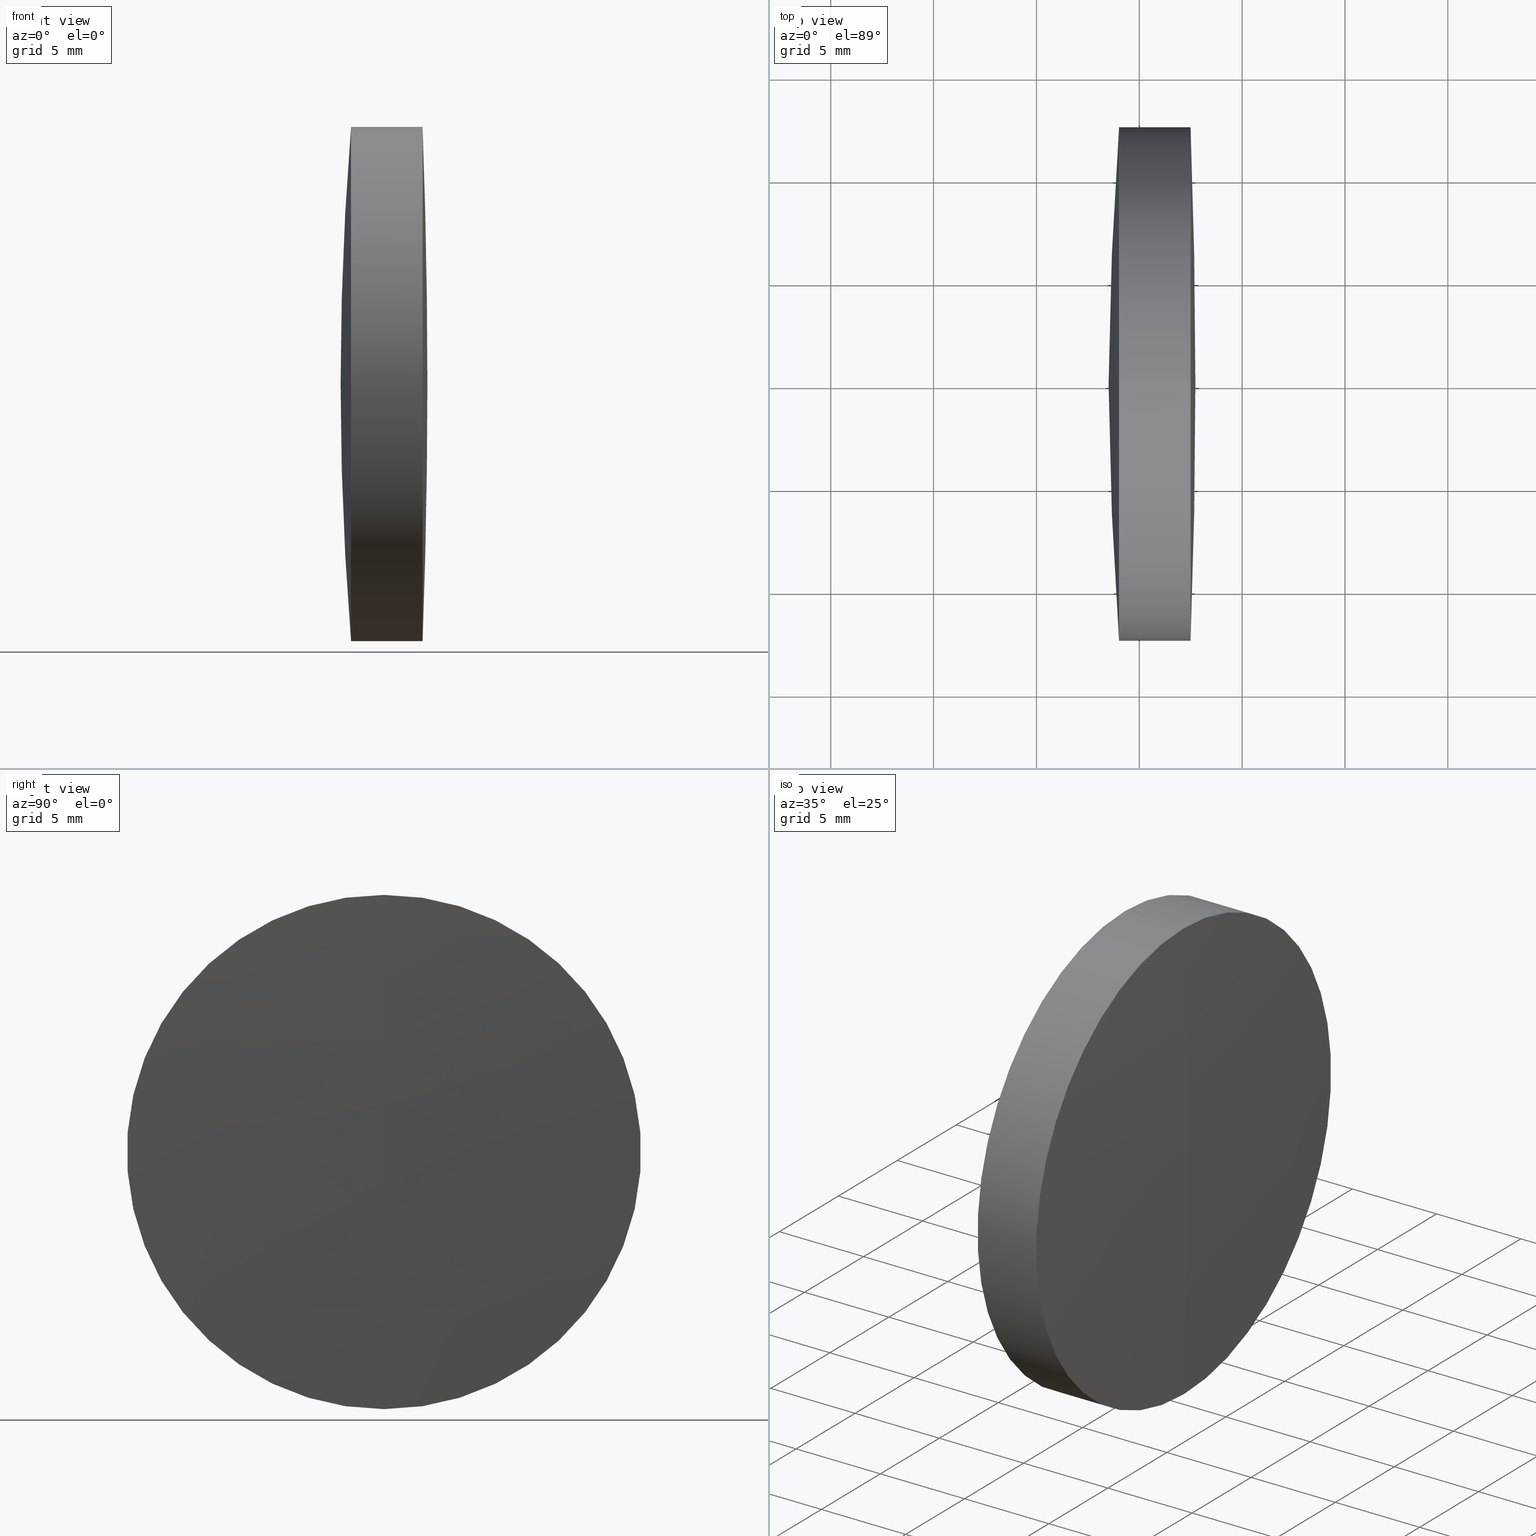
[diagram: canonical four-view strip — front | top / right | iso, engineering-drawing reading convention]
A machine part, canonical four-view strip (front | top / right | iso — engineering-drawing reading convention). The complete STEP part file that produces these views, byte-faithful:
ISO-10303-21;
HEADER;
FILE_DESCRIPTION (( 'STEP AP214' ),
    '1' );
FILE_NAME ('145046.STEP',
    '2019-05-12T07:00:24',
    ( 'user' ),
    ( '΢���й�' ),
    'SwSTEP 2.0',
    'SolidWorks 2016',
    '' );
FILE_SCHEMA (( 'AUTOMOTIVE_DESIGN' ));
ENDSEC;

DATA;
#1 = PRESENTATION_LAYER_ASSIGNMENT (  '', '', ( #36 ) ) ;
#2 = CARTESIAN_POINT ( 'NONE',  ( 115.4447867878546700, 1.530808498934191500E-015, -12.50000000000000000 ) ) ;
#3 = ORIENTED_EDGE ( 'NONE', *, *, #121, .F. ) ;
#4 = ORIENTED_EDGE ( 'NONE', *, *, #208, .F. ) ;
#5 = ADVANCED_FACE ( 'NONE', ( #166 ), #158, .T. ) ;
#6 = DIRECTION ( 'NONE',  ( -0.0000000000000000000, 1.000000000000000000, 1.224646799147353200E-016 ) ) ;
#7 = CARTESIAN_POINT ( 'NONE',  ( -9.702612178336682500, 1.530808498934191500E-015, -12.50000000000000000 ) ) ;
#8 = EDGE_CURVE ( 'NONE', #28, #264, #342, .T. ) ;
#9 = DIRECTION ( 'NONE',  ( 0.0000000000000000000, 0.0000000000000000000, -1.000000000000000000 ) ) ;
#10 = CIRCLE ( 'NONE', #305, 101.3390000000000000 ) ;
#11 = DIRECTION ( 'NONE',  ( 0.0000000000000000000, 0.0000000000000000000, 1.000000000000000000 ) ) ;
#12 = DIRECTION ( 'NONE',  ( 0.0000000000000000000, 1.000000000000000000, 0.0000000000000000000 ) ) ;
#13 = DIRECTION ( 'NONE',  ( 0.0000000000000000000, -1.224646799147353200E-016, 1.000000000000000000 ) ) ;
#14 = VECTOR ( 'NONE', #54, 1000.000000000000000 ) ;
#15 = DIRECTION ( 'NONE',  ( 0.0000000000000000000, -1.224646799147353000E-016, 1.000000000000000000 ) ) ;
#16 = ORIENTED_EDGE ( 'NONE', *, *, #160, .T. ) ;
#17 = CARTESIAN_POINT ( 'NONE',  ( 115.4447867878546700, 0.0000000000000000000, 0.0000000000000000000 ) ) ;
#18 = DIRECTION ( 'NONE',  ( 0.0000000000000000000, 0.0000000000000000000, -1.000000000000000000 ) ) ;
#19 = DIRECTION ( 'NONE',  ( -0.0000000000000000000, 1.000000000000000000, 1.224646799147353200E-016 ) ) ;
#20 = CARTESIAN_POINT ( 'NONE',  ( 117.4941239712516400, 0.0000000000000000000, 0.0000000000000000000 ) ) ;
#21 = CARTESIAN_POINT ( 'NONE',  ( 115.4447867878546400, 0.0000000000000000000, 12.49999999999999300 ) ) ;
#22 = VERTEX_POINT ( 'NONE', #225 ) ;
#23 = AXIS2_PLACEMENT_3D ( 'NONE', #20, #296, #322 ) ;
#24 = VERTEX_POINT ( 'NONE', #256 ) ;
#25 = AXIS2_PLACEMENT_3D ( 'NONE', #17, #265, #274 ) ;
#26 = CARTESIAN_POINT ( 'NONE',  ( 115.4447867878546400, 0.0000000000000000000, 0.0000000000000000000 ) ) ;
#27 = DIRECTION ( 'NONE',  ( 0.0000000000000000000, 1.000000000000000000, 0.0000000000000000000 ) ) ;
#28 = VERTEX_POINT ( 'NONE', #172 ) ;
#29 = CIRCLE ( 'NONE', #25, 12.50000000000000000 ) ;
#30 = SPHERICAL_SURFACE ( 'NONE', #93, 101.3390000000000000 ) ;
#31 = DIRECTION ( 'NONE',  ( 0.0000000000000000000, 1.000000000000000000, 0.0000000000000000000 ) ) ;
#32 = AXIS2_PLACEMENT_3D ( 'NONE', #61, #164, #9 ) ;
#33 = APPLICATION_CONTEXT ( 'automotive_design' ) ;
#34 = ORIENTED_EDGE ( 'NONE', *, *, #85, .T. ) ;
#35 = CYLINDRICAL_SURFACE ( 'NONE', #56, 12.49999999999996600 ) ;
#36 = STYLED_ITEM ( 'NONE', ( #284 ), #77 ) ;
#37 = ORIENTED_EDGE ( 'NONE', *, *, #251, .T. ) ;
#38 = VERTEX_POINT ( 'NONE', #155 ) ;
#39 = DIRECTION ( 'NONE',  ( -0.0000000000000000000, 1.000000000000000000, 1.224646799147353200E-016 ) ) ;
#40 = CARTESIAN_POINT ( 'NONE',  ( -9.702612178336682500, 0.0000000000000000000, 0.0000000000000000000 ) ) ;
#41 = PRODUCT_CONTEXT ( 'NONE', #214, 'mechanical' ) ;
#42 =( NAMED_UNIT ( * ) PLANE_ANGLE_UNIT ( ) SI_UNIT ( $, .RADIAN. ) );
#43 = ORIENTED_EDGE ( 'NONE', *, *, #70, .T. ) ;
#44 =( NAMED_UNIT ( * ) SI_UNIT ( $, .STERADIAN. ) SOLID_ANGLE_UNIT ( ) );
#45 = AXIS2_PLACEMENT_3D ( 'NONE', #334, #31, #277 ) ;
#46 = PRODUCT_DEFINITION ( 'δ֪', '', #150, #244 ) ;
#47 = CARTESIAN_POINT ( 'NONE',  ( 14.87966897357473400, 0.0000000000000000000, 1.355252715606880500E-017 ) ) ;
#48 = DIRECTION ( 'NONE',  ( -1.000000000000000000, -0.0000000000000000000, -0.0000000000000000000 ) ) ;
#49 = ORIENTED_EDGE ( 'NONE', *, *, #206, .F. ) ;
#50 = DIRECTION ( 'NONE',  ( -1.000000000000000000, -0.0000000000000000000, -0.0000000000000000000 ) ) ;
#51 = ADVANCED_FACE ( 'NONE', ( #119 ), #302, .T. ) ;
#52 = EDGE_CURVE ( 'NONE', #38, #264, #102, .T. ) ;
#53 = SURFACE_SIDE_STYLE ('',( #245 ) ) ;
#54 = DIRECTION ( 'NONE',  ( -1.000000000000000000, -0.0000000000000000000, -0.0000000000000000000 ) ) ;
#55 = ORIENTED_EDGE ( 'NONE', *, *, #131, .F. ) ;
#56 = AXIS2_PLACEMENT_3D ( 'NONE', #71, #64, #99 ) ;
#57 = FACE_OUTER_BOUND ( 'NONE', #170, .T. ) ;
#58 = EDGE_LOOP ( 'NONE', ( #281, #34, #83 ) ) ;
#59 = DIRECTION ( 'NONE',  ( 1.000000000000000000, 0.0000000000000000000, 0.0000000000000000000 ) ) ;
#60 = AXIS2_PLACEMENT_3D ( 'NONE', #95, #221, #59 ) ;
#61 = CARTESIAN_POINT ( 'NONE',  ( 267.3406689735747400, 0.0000000000000000000, -9.034551352721274800E-017 ) ) ;
#62 = ORIENTED_EDGE ( 'NONE', *, *, #224, .T. ) ;
#63 = STYLED_ITEM ( 'NONE', ( #280 ), #333 ) ;
#64 = DIRECTION ( 'NONE',  ( -1.000000000000000000, -0.0000000000000000000, -0.0000000000000000000 ) ) ;
#65 = DIRECTION ( 'NONE',  ( 0.0000000000000000000, 0.0000000000000000000, 1.000000000000000000 ) ) ;
#66 = CARTESIAN_POINT ( 'NONE',  ( 267.3406689735747400, 0.0000000000000000000, -9.034551352721274800E-017 ) ) ;
#67 = CYLINDRICAL_SURFACE ( 'NONE', #84, 12.50000000000000000 ) ;
#68 = VERTEX_POINT ( 'NONE', #2 ) ;
#69 = DIRECTION ( 'NONE',  ( 0.0000000000000000000, 0.0000000000000000000, 1.000000000000000000 ) ) ;
#70 = EDGE_CURVE ( 'NONE', #264, #24, #103, .T. ) ;
#71 = CARTESIAN_POINT ( 'NONE',  ( -0.5519199926577972300, 0.0000000000000000000, 0.0000000000000000000 ) ) ;
#72 = DIRECTION ( 'NONE',  ( 0.0000000000000000000, 0.0000000000000000000, 1.000000000000000000 ) ) ;
#73 =( LENGTH_UNIT ( ) NAMED_UNIT ( * ) SI_UNIT ( .MILLI., .METRE. ) );
#74 =( NAMED_UNIT ( * ) SI_UNIT ( $, .STERADIAN. ) SOLID_ANGLE_UNIT ( ) );
#75 = COLOUR_RGB ( '',1.000000000000000000, 1.000000000000000000, 1.000000000000000000 ) ;
#76 = FACE_OUTER_BOUND ( 'NONE', #346, .T. ) ;
#77 = MANIFOLD_SOLID_BREP ( '��ת3', #159 ) ;
#78 = DIRECTION ( 'NONE',  ( -1.000000000000000000, -0.0000000000000000000, -0.0000000000000000000 ) ) ;
#79 = AXIS2_PLACEMENT_3D ( 'NONE', #312, #27, #212 ) ;
#80 = MECHANICAL_DESIGN_GEOMETRIC_PRESENTATION_REPRESENTATION (  '', ( #36 ), #268 ) ;
#81 = CARTESIAN_POINT ( 'NONE',  ( 115.4447867878546400, 0.0000000000000000000, 0.0000000000000000000 ) ) ;
#82 = APPLICATION_PROTOCOL_DEFINITION ( 'draft international standard', 'automotive_design', 1998, #214 ) ;
#83 = ORIENTED_EDGE ( 'NONE', *, *, #184, .F. ) ;
#84 = AXIS2_PLACEMENT_3D ( 'NONE', #219, #331, #100 ) ;
#85 = EDGE_CURVE ( 'NONE', #28, #38, #325, .T. ) ;
#86 =( NAMED_UNIT ( * ) SI_UNIT ( $, .STERADIAN. ) SOLID_ANGLE_UNIT ( ) );
#87 = EDGE_LOOP ( 'NONE', ( #327, #146, #290 ) ) ;
#88 = DIRECTION ( 'NONE',  ( 0.0000000000000000000, 1.000000000000000000, 0.0000000000000000000 ) ) ;
#89 = FILL_AREA_STYLE ('',( #332 ) ) ;
#90 = CIRCLE ( 'NONE', #344, 101.3389999999999800 ) ;
#91 = CARTESIAN_POINT ( 'NONE',  ( 14.87966897357473400, 0.0000000000000000000, 1.355252715606880500E-017 ) ) ;
#92 = EDGE_CURVE ( 'NONE', #101, #216, #340, .T. ) ;
#93 = AXIS2_PLACEMENT_3D ( 'NONE', #47, #12, #108 ) ;
#94 = DIRECTION ( 'NONE',  ( 0.0000000000000000000, 1.000000000000000000, 0.0000000000000000000 ) ) ;
#95 = CARTESIAN_POINT ( 'NONE',  ( 0.0000000000000000000, 0.0000000000000000000, 0.0000000000000000000 ) ) ;
#96 = CARTESIAN_POINT ( 'NONE',  ( 14.87966897357473400, 0.0000000000000000000, 1.355252715606880500E-017 ) ) ;
#97 = CARTESIAN_POINT ( 'NONE',  ( 267.3406689735747400, 0.0000000000000000000, -9.034551352721274800E-017 ) ) ;
#98 = DIRECTION ( 'NONE',  ( -1.000000000000000000, -0.0000000000000000000, -0.0000000000000000000 ) ) ;
#99 = DIRECTION ( 'NONE',  ( 0.0000000000000000000, 0.0000000000000000000, 1.000000000000000000 ) ) ;
#100 = DIRECTION ( 'NONE',  ( 0.0000000000000000000, 0.0000000000000000000, 1.000000000000000000 ) ) ;
#101 = VERTEX_POINT ( 'NONE', #113 ) ;
#102 = CIRCLE ( 'NONE', #23, 12.49999999999995000 ) ;
#103 = LINE ( 'NONE', #291, #14 ) ;
#104 = UNCERTAINTY_MEASURE_WITH_UNIT (LENGTH_MEASURE( 1.000000000000000100E-005 ), #124, 'distance_accuracy_value', 'NONE');
#105 = EDGE_CURVE ( 'NONE', #24, #216, #308, .T. ) ;
#106 = ORIENTED_EDGE ( 'NONE', *, *, #149, .F. ) ;
#107 = DIRECTION ( 'NONE',  ( 0.0000000000000000000, 1.000000000000000000, 0.0000000000000000000 ) ) ;
#108 = DIRECTION ( 'NONE',  ( 0.0000000000000000000, 0.0000000000000000000, 1.000000000000000000 ) ) ;
#109 = AXIS2_PLACEMENT_3D ( 'NONE', #111, #107, #278 ) ;
#110 = DIRECTION ( 'NONE',  ( 0.0000000000000000000, 0.0000000000000000000, 1.000000000000000000 ) ) ;
#111 = CARTESIAN_POINT ( 'NONE',  ( 14.87966897357473400, 0.0000000000000000000, 1.355252715606880500E-017 ) ) ;
#112 = FACE_OUTER_BOUND ( 'NONE', #126, .T. ) ;
#113 = CARTESIAN_POINT ( 'NONE',  ( 116.2186689735747200, 0.0000000000000000000, 6.218776626095749400E-015 ) ) ;
#114 = DIRECTION ( 'NONE',  ( 0.0000000000000000000, -1.224646799147353500E-016, 1.000000000000000000 ) ) ;
#115 = ORIENTED_EDGE ( 'NONE', *, *, #8, .T. ) ;
#116 = DIRECTION ( 'NONE',  ( 0.0000000000000000000, 0.0000000000000000000, 1.000000000000000000 ) ) ;
#117 = SURFACE_STYLE_FILL_AREA ( #313 ) ;
#118 = DIRECTION ( 'NONE',  ( 0.0000000000000000000, 0.0000000000000000000, 1.000000000000000000 ) ) ;
#119 = FACE_OUTER_BOUND ( 'NONE', #58, .T. ) ;
#120 = DIRECTION ( 'NONE',  ( -1.000000000000000000, -0.0000000000000000000, -0.0000000000000000000 ) ) ;
#121 = EDGE_CURVE ( 'NONE', #228, #343, #133, .T. ) ;
#122 = FACE_OUTER_BOUND ( 'NONE', #182, .T. ) ;
#123 = AXIS2_PLACEMENT_3D ( 'NONE', #40, #50, #118 ) ;
#124 =( LENGTH_UNIT ( ) NAMED_UNIT ( * ) SI_UNIT ( .MILLI., .METRE. ) );
#125 = ORIENTED_EDGE ( 'NONE', *, *, #137, .F. ) ;
#126 = EDGE_LOOP ( 'NONE', ( #259, #43, #125, #261 ) ) ;
#127 = COLOUR_RGB ( '',1.000000000000000000, 1.000000000000000000, 1.000000000000000000 ) ;
#128 = CIRCLE ( 'NONE', #161, 153.8320000000000200 ) ;
#129 = ADVANCED_FACE ( 'NONE', ( #122 ), #187, .T. ) ;
#130 = CLOSED_SHELL ( 'NONE', ( #341, #257, #5, #248, #294, #315 ) ) ;
#131 = EDGE_CURVE ( 'NONE', #343, #228, #207, .T. ) ;
#132 = PRESENTATION_LAYER_ASSIGNMENT (  '', '', ( #63 ) ) ;
#133 = CIRCLE ( 'NONE', #317, 12.50000000000000000 ) ;
#134 = ORIENTED_EDGE ( 'NONE', *, *, #177, .F. ) ;
#135 = MECHANICAL_DESIGN_GEOMETRIC_PRESENTATION_REPRESENTATION (  '', ( #180 ), #243 ) ;
#136 = CARTESIAN_POINT ( 'NONE',  ( 14.87966897357473400, 0.0000000000000000000, 1.355252715606880500E-017 ) ) ;
#137 = EDGE_CURVE ( 'NONE', #216, #24, #213, .T. ) ;
#138 = ORIENTED_EDGE ( 'NONE', *, *, #105, .T. ) ;
#139 = CARTESIAN_POINT ( 'NONE',  ( -215.4803310264252900, 0.0000000000000000000, 0.0000000000000000000 ) ) ;
#140 = SURFACE_STYLE_FILL_AREA ( #89 ) ;
#141 = SPHERICAL_SURFACE ( 'NONE', #204, 101.3390000000000000 ) ;
#142 = EDGE_CURVE ( 'NONE', #38, #216, #314, .T. ) ;
#143 = ORIENTED_EDGE ( 'NONE', *, *, #160, .F. ) ;
#144 = CARTESIAN_POINT ( 'NONE',  ( -215.4803310264252900, 0.0000000000000000000, 0.0000000000000000000 ) ) ;
#145 = CARTESIAN_POINT ( 'NONE',  ( -0.5519199926577972300, 0.0000000000000000000, 0.0000000000000000000 ) ) ;
#146 = ORIENTED_EDGE ( 'NONE', *, *, #131, .T. ) ;
#147 = VECTOR ( 'NONE', #120, 1000.000000000000000 ) ;
#148 = CARTESIAN_POINT ( 'NONE',  ( -215.4803310264252900, 0.0000000000000000000, 0.0000000000000000000 ) ) ;
#149 = EDGE_CURVE ( 'NONE', #231, #228, #162, .T. ) ;
#150 = PRODUCT_DEFINITION_FORMATION_WITH_SPECIFIED_SOURCE ( '�κ�', '', #267, .NOT_KNOWN. ) ;
#151 = DIRECTION ( 'NONE',  ( 0.0000000000000000000, -1.000000000000000000, 0.0000000000000000000 ) ) ;
#152 = ADVANCED_FACE ( 'NONE', ( #112 ), #35, .T. ) ;
#153 = EDGE_LOOP ( 'NONE', ( #318, #62, #138 ) ) ;
#154 =( GEOMETRIC_REPRESENTATION_CONTEXT ( 3 ) GLOBAL_UNCERTAINTY_ASSIGNED_CONTEXT ( ( #205 ) ) GLOBAL_UNIT_ASSIGNED_CONTEXT ( ( #241, #188, #74 ) ) REPRESENTATION_CONTEXT ( 'NONE', 'WORKASPACE' ) );
#155 = CARTESIAN_POINT ( 'NONE',  ( 117.4941239712516400, 0.0000000000000000000, 12.49999999999995000 ) ) ;
#156 = ADVANCED_FACE ( 'NONE', ( #174 ), #157, .F. ) ;
#157 = SPHERICAL_SURFACE ( 'NONE', #109, 101.3389999999999800 ) ;
#158 = SPHERICAL_SURFACE ( 'NONE', #45, 153.8320000000000200 ) ;
#159 = CLOSED_SHELL ( 'NONE', ( #129, #152, #347, #156, #298, #51 ) ) ;
#160 = EDGE_CURVE ( 'NONE', #22, #68, #234, .T. ) ;
#161 = AXIS2_PLACEMENT_3D ( 'NONE', #97, #168, #114 ) ;
#162 = LINE ( 'NONE', #304, #147 ) ;
#163 = SPHERICAL_SURFACE ( 'NONE', #238, 153.8320000000000200 ) ;
#164 = DIRECTION ( 'NONE',  ( 0.0000000000000000000, -1.000000000000000000, 0.0000000000000000000 ) ) ;
#165 = DIRECTION ( 'NONE',  ( 0.0000000000000000000, -1.000000000000000000, 0.0000000000000000000 ) ) ;
#166 = FACE_OUTER_BOUND ( 'NONE', #255, .T. ) ;
#167 = DIRECTION ( 'NONE',  ( -1.000000000000000000, -0.0000000000000000000, -0.0000000000000000000 ) ) ;
#168 = DIRECTION ( 'NONE',  ( -0.0000000000000000000, 1.000000000000000000, 1.224646799147353200E-016 ) ) ;
#169 =( NAMED_UNIT ( * ) PLANE_ANGLE_UNIT ( ) SI_UNIT ( $, .RADIAN. ) );
#170 = EDGE_LOOP ( 'NONE', ( #237, #16, #134 ) ) ;
#171 = DIRECTION ( 'NONE',  ( -1.000000000000000000, -0.0000000000000000000, -0.0000000000000000000 ) ) ;
#172 = CARTESIAN_POINT ( 'NONE',  ( 117.7286689735747000, 0.0000000000000000000, 2.040316676485451900E-014 ) ) ;
#173 = SURFACE_STYLE_USAGE ( .BOTH. , #215 ) ;
#174 = FACE_OUTER_BOUND ( 'NONE', #246, .T. ) ;
#175 = CARTESIAN_POINT ( 'NONE',  ( 117.4941239712516400, 0.0000000000000000000, 0.0000000000000000000 ) ) ;
#176 = DIRECTION ( 'NONE',  ( 0.0000000000000000000, 0.0000000000000000000, 1.000000000000000000 ) ) ;
#177 = EDGE_CURVE ( 'NONE', #231, #68, #29, .T. ) ;
#178 = AXIS2_PLACEMENT_3D ( 'NONE', #81, #295, #65 ) ;
#179 = ORIENTED_EDGE ( 'NONE', *, *, #149, .T. ) ;
#180 = STYLED_ITEM ( 'NONE', ( #287 ), #200 ) ;
#181 = FACE_OUTER_BOUND ( 'NONE', #217, .T. ) ;
#182 = EDGE_LOOP ( 'NONE', ( #254, #115, #271 ) ) ;
#183 = CIRCLE ( 'NONE', #262, 12.50000000000000000 ) ;
#184 = EDGE_CURVE ( 'NONE', #264, #38, #253, .T. ) ;
#185 = CARTESIAN_POINT ( 'NONE',  ( 117.4941239712516400, 1.530808498934186400E-015, -12.49999999999995000 ) ) ;
#186 = CARTESIAN_POINT ( 'NONE',  ( 114.0173692960632100, 1.530808498934200400E-015, -12.50000000000007300 ) ) ;
#187 = SPHERICAL_SURFACE ( 'NONE', #288, 333.2090000000000000 ) ;
#188 =( NAMED_UNIT ( * ) PLANE_ANGLE_UNIT ( ) SI_UNIT ( $, .RADIAN. ) );
#189 = EDGE_CURVE ( 'NONE', #22, #231, #10, .T. ) ;
#190 = PRESENTATION_LAYER_ASSIGNMENT (  '', '', ( #180 ) ) ;
#191 = DIRECTION ( 'NONE',  ( 0.0000000000000000000, -1.224646799147353200E-016, 1.000000000000000000 ) ) ;
#192 = ORIENTED_EDGE ( 'NONE', *, *, #70, .F. ) ;
#193 = DIRECTION ( 'NONE',  ( 0.0000000000000000000, -1.000000000000000000, 0.0000000000000000000 ) ) ;
#194 = UNCERTAINTY_MEASURE_WITH_UNIT (LENGTH_MEASURE( 1.000000000000000100E-005 ), #73, 'distance_accuracy_value', 'NONE');
#195 = LINE ( 'NONE', #7, #209 ) ;
#196 = DIRECTION ( 'NONE',  ( -1.000000000000000000, -0.0000000000000000000, -0.0000000000000000000 ) ) ;
#197 = ORIENTED_EDGE ( 'NONE', *, *, #251, .F. ) ;
#198 = AXIS2_PLACEMENT_3D ( 'NONE', #276, #88, #239 ) ;
#199 = CARTESIAN_POINT ( 'NONE',  ( 114.0173692960632100, 0.0000000000000000000, 0.0000000000000000000 ) ) ;
#200 = ADVANCED_BREP_SHAPE_REPRESENTATION ( '145046', ( #333, #77, #60 ), #154 ) ;
#201 = ORIENTED_EDGE ( 'NONE', *, *, #137, .T. ) ;
#202 = CYLINDRICAL_SURFACE ( 'NONE', #311, 12.49999999999996600 ) ;
#203 = ORIENTED_EDGE ( 'NONE', *, *, #208, .T. ) ;
#204 = AXIS2_PLACEMENT_3D ( 'NONE', #91, #320, #72 ) ;
#205 = UNCERTAINTY_MEASURE_WITH_UNIT (LENGTH_MEASURE( 1.000000000000000100E-005 ), #241, 'distance_accuracy_value', 'NONE');
#206 = EDGE_CURVE ( 'NONE', #228, #329, #242, .T. ) ;
#207 = CIRCLE ( 'NONE', #293, 12.50000000000000000 ) ;
#208 = EDGE_CURVE ( 'NONE', #68, #343, #195, .T. ) ;
#209 = VECTOR ( 'NONE', #167, 1000.000000000000000 ) ;
#210 = ORIENTED_EDGE ( 'NONE', *, *, #189, .T. ) ;
#211 = DIRECTION ( 'NONE',  ( 0.0000000000000000000, 0.0000000000000000000, -1.000000000000000000 ) ) ;
#212 = DIRECTION ( 'NONE',  ( 0.0000000000000000000, 0.0000000000000000000, 1.000000000000000000 ) ) ;
#213 = CIRCLE ( 'NONE', #233, 12.49999999999998400 ) ;
#214 = APPLICATION_CONTEXT ( 'automotive_design' ) ;
#215 = SURFACE_SIDE_STYLE ('',( #140 ) ) ;
#216 = VERTEX_POINT ( 'NONE', #21 ) ;
#217 = EDGE_LOOP ( 'NONE', ( #192, #273, #279, #229 ) ) ;
#218 = SURFACE_SIDE_STYLE ('',( #117 ) ) ;
#219 = CARTESIAN_POINT ( 'NONE',  ( -9.702612178336682500, 0.0000000000000000000, 0.0000000000000000000 ) ) ;
#220 = CARTESIAN_POINT ( 'NONE',  ( 114.0173692960632100, 0.0000000000000000000, 0.0000000000000000000 ) ) ;
#221 = DIRECTION ( 'NONE',  ( 0.0000000000000000000, 0.0000000000000000000, 1.000000000000000000 ) ) ;
#222 = AXIS2_PLACEMENT_3D ( 'NONE', #175, #196, #110 ) ;
#223 = DIRECTION ( 'NONE',  ( 0.0000000000000000000, 0.0000000000000000000, 1.000000000000000000 ) ) ;
#224 = EDGE_CURVE ( 'NONE', #101, #24, #90, .T. ) ;
#225 = CARTESIAN_POINT ( 'NONE',  ( 116.2186689735747400, 0.0000000000000000000, 6.218776626095750100E-015 ) ) ;
#226 = ORIENTED_EDGE ( 'NONE', *, *, #121, .T. ) ;
#227 = FILL_AREA_STYLE_COLOUR ( '', #260 ) ;
#228 = VERTEX_POINT ( 'NONE', #269 ) ;
#229 = ORIENTED_EDGE ( 'NONE', *, *, #105, .F. ) ;
#230 = SPHERICAL_SURFACE ( 'NONE', #198, 101.3389999999999800 ) ;
#231 = VERTEX_POINT ( 'NONE', #335 ) ;
#232 = EDGE_CURVE ( 'NONE', #343, #329, #128, .T. ) ;
#233 = AXIS2_PLACEMENT_3D ( 'NONE', #26, #98, #116 ) ;
#234 = CIRCLE ( 'NONE', #310, 101.3390000000000000 ) ;
#235 = SHAPE_DEFINITION_REPRESENTATION ( #345, #200 ) ;
#236 =( LENGTH_UNIT ( ) NAMED_UNIT ( * ) SI_UNIT ( .MILLI., .METRE. ) );
#237 = ORIENTED_EDGE ( 'NONE', *, *, #189, .F. ) ;
#238 = AXIS2_PLACEMENT_3D ( 'NONE', #66, #249, #11 ) ;
#239 = DIRECTION ( 'NONE',  ( 0.0000000000000000000, 0.0000000000000000000, 1.000000000000000000 ) ) ;
#240 = DIRECTION ( 'NONE',  ( 0.0000000000000000000, 0.0000000000000000000, 1.000000000000000000 ) ) ;
#241 =( LENGTH_UNIT ( ) NAMED_UNIT ( * ) SI_UNIT ( .MILLI., .METRE. ) );
#242 = CIRCLE ( 'NONE', #32, 153.8320000000000200 ) ;
#243 =( GEOMETRIC_REPRESENTATION_CONTEXT ( 3 ) GLOBAL_UNCERTAINTY_ASSIGNED_CONTEXT ( ( #299 ) ) GLOBAL_UNIT_ASSIGNED_CONTEXT ( ( #236, #42, #86 ) ) REPRESENTATION_CONTEXT ( 'NONE', 'WORKASPACE' ) );
#244 = PRODUCT_DEFINITION_CONTEXT ( 'detailed design', #33, 'design' ) ;
#245 = SURFACE_STYLE_FILL_AREA ( #306 ) ;
#246 = EDGE_LOOP ( 'NONE', ( #250, #303, #201 ) ) ;
#247 = FILL_AREA_STYLE_COLOUR ( '', #127 ) ;
#248 = ADVANCED_FACE ( 'NONE', ( #307 ), #163, .T. ) ;
#249 = DIRECTION ( 'NONE',  ( 0.0000000000000000000, 1.000000000000000000, 0.0000000000000000000 ) ) ;
#250 = ORIENTED_EDGE ( 'NONE', *, *, #224, .F. ) ;
#251 = EDGE_CURVE ( 'NONE', #68, #231, #183, .T. ) ;
#252 = PRODUCT_RELATED_PRODUCT_CATEGORY ( 'part', '', ( #267 ) ) ;
#253 = CIRCLE ( 'NONE', #222, 12.49999999999995000 ) ;
#254 = ORIENTED_EDGE ( 'NONE', *, *, #85, .F. ) ;
#255 = EDGE_LOOP ( 'NONE', ( #226, #292, #49 ) ) ;
#256 = CARTESIAN_POINT ( 'NONE',  ( 115.4447867878546400, 1.530808498934190500E-015, -12.49999999999999300 ) ) ;
#257 = ADVANCED_FACE ( 'NONE', ( #319 ), #67, .T. ) ;
#258 = AXIS2_PLACEMENT_3D ( 'NONE', #139, #151, #18 ) ;
#259 = ORIENTED_EDGE ( 'NONE', *, *, #52, .T. ) ;
#260 = COLOUR_RGB ( '',1.000000000000000000, 1.000000000000000000, 1.000000000000000000 ) ;
#261 = ORIENTED_EDGE ( 'NONE', *, *, #142, .F. ) ;
#262 = AXIS2_PLACEMENT_3D ( 'NONE', #297, #171, #176 ) ;
#263 = VECTOR ( 'NONE', #337, 1000.000000000000000 ) ;
#264 = VERTEX_POINT ( 'NONE', #185 ) ;
#265 = DIRECTION ( 'NONE',  ( -1.000000000000000000, -0.0000000000000000000, -0.0000000000000000000 ) ) ;
#266 = DIRECTION ( 'NONE',  ( -1.000000000000000000, -0.0000000000000000000, -0.0000000000000000000 ) ) ;
#267 = PRODUCT ( '145046', '145046', '', ( #41 ) ) ;
#268 =( GEOMETRIC_REPRESENTATION_CONTEXT ( 3 ) GLOBAL_UNCERTAINTY_ASSIGNED_CONTEXT ( ( #194 ) ) GLOBAL_UNIT_ASSIGNED_CONTEXT ( ( #73, #169, #339 ) ) REPRESENTATION_CONTEXT ( 'NONE', 'WORKASPACE' ) );
#269 = CARTESIAN_POINT ( 'NONE',  ( 114.0173692960632100, 0.0000000000000000000, 12.50000000000007300 ) ) ;
#270 = CARTESIAN_POINT ( 'NONE',  ( 14.87966897357473400, 0.0000000000000000000, 1.355252715606880500E-017 ) ) ;
#271 = ORIENTED_EDGE ( 'NONE', *, *, #52, .F. ) ;
#272 = MECHANICAL_DESIGN_GEOMETRIC_PRESENTATION_REPRESENTATION (  '', ( #63 ), #323 ) ;
#273 = ORIENTED_EDGE ( 'NONE', *, *, #184, .T. ) ;
#274 = DIRECTION ( 'NONE',  ( 0.0000000000000000000, 0.0000000000000000000, 1.000000000000000000 ) ) ;
#275 = DIRECTION ( 'NONE',  ( 0.0000000000000000000, 0.0000000000000000000, 1.000000000000000000 ) ) ;
#276 = CARTESIAN_POINT ( 'NONE',  ( 14.87966897357473400, 0.0000000000000000000, 1.355252715606880500E-017 ) ) ;
#277 = DIRECTION ( 'NONE',  ( 0.0000000000000000000, 0.0000000000000000000, 1.000000000000000000 ) ) ;
#278 = DIRECTION ( 'NONE',  ( 0.0000000000000000000, 0.0000000000000000000, 1.000000000000000000 ) ) ;
#279 = ORIENTED_EDGE ( 'NONE', *, *, #142, .T. ) ;
#280 = PRESENTATION_STYLE_ASSIGNMENT (( #321 ) ) ;
#281 = ORIENTED_EDGE ( 'NONE', *, *, #8, .F. ) ;
#282 = CARTESIAN_POINT ( 'NONE',  ( 113.5086689735747000, 0.0000000000000000000, 9.329147806794571100E-015 ) ) ;
#283 = AXIS2_PLACEMENT_3D ( 'NONE', #136, #165, #211 ) ;
#284 = PRESENTATION_STYLE_ASSIGNMENT (( #173 ) ) ;
#285 = EDGE_LOOP ( 'NONE', ( #309, #203, #3, #106 ) ) ;
#286 = FACE_OUTER_BOUND ( 'NONE', #153, .T. ) ;
#287 = PRESENTATION_STYLE_ASSIGNMENT (( #301 ) ) ;
#288 = AXIS2_PLACEMENT_3D ( 'NONE', #148, #94, #240 ) ;
#289 = FACE_OUTER_BOUND ( 'NONE', #336, .T. ) ;
#290 = ORIENTED_EDGE ( 'NONE', *, *, #206, .T. ) ;
#291 = CARTESIAN_POINT ( 'NONE',  ( -0.5519199926577972300, 1.530808498934187400E-015, -12.49999999999996600 ) ) ;
#292 = ORIENTED_EDGE ( 'NONE', *, *, #232, .T. ) ;
#293 = AXIS2_PLACEMENT_3D ( 'NONE', #199, #48, #223 ) ;
#294 = ADVANCED_FACE ( 'NONE', ( #76 ), #328, .T. ) ;
#295 = DIRECTION ( 'NONE',  ( -1.000000000000000000, -0.0000000000000000000, -0.0000000000000000000 ) ) ;
#296 = DIRECTION ( 'NONE',  ( -1.000000000000000000, -0.0000000000000000000, -0.0000000000000000000 ) ) ;
#297 = CARTESIAN_POINT ( 'NONE',  ( 115.4447867878546700, 0.0000000000000000000, 0.0000000000000000000 ) ) ;
#298 = ADVANCED_FACE ( 'NONE', ( #181 ), #202, .T. ) ;
#299 = UNCERTAINTY_MEASURE_WITH_UNIT (LENGTH_MEASURE( 1.000000000000000100E-005 ), #236, 'distance_accuracy_value', 'NONE');
#300 = DIRECTION ( 'NONE',  ( 0.0000000000000000000, 0.0000000000000000000, -1.000000000000000000 ) ) ;
#301 = SURFACE_STYLE_USAGE ( .BOTH. , #218 ) ;
#302 = SPHERICAL_SURFACE ( 'NONE', #79, 333.2090000000000000 ) ;
#303 = ORIENTED_EDGE ( 'NONE', *, *, #92, .T. ) ;
#304 = CARTESIAN_POINT ( 'NONE',  ( -9.702612178336682500, 0.0000000000000000000, 12.50000000000000000 ) ) ;
#305 = AXIS2_PLACEMENT_3D ( 'NONE', #326, #193, #300 ) ;
#306 = FILL_AREA_STYLE ('',( #227 ) ) ;
#307 = FACE_OUTER_BOUND ( 'NONE', #87, .T. ) ;
#308 = CIRCLE ( 'NONE', #178, 12.49999999999998400 ) ;
#309 = ORIENTED_EDGE ( 'NONE', *, *, #177, .T. ) ;
#310 = AXIS2_PLACEMENT_3D ( 'NONE', #270, #6, #191 ) ;
#311 = AXIS2_PLACEMENT_3D ( 'NONE', #145, #266, #69 ) ;
#312 = CARTESIAN_POINT ( 'NONE',  ( -215.4803310264252900, 0.0000000000000000000, 0.0000000000000000000 ) ) ;
#313 = FILL_AREA_STYLE ('',( #247 ) ) ;
#314 = LINE ( 'NONE', #324, #263 ) ;
#315 = ADVANCED_FACE ( 'NONE', ( #289 ), #30, .T. ) ;
#316 = AXIS2_PLACEMENT_3D ( 'NONE', #144, #19, #15 ) ;
#317 = AXIS2_PLACEMENT_3D ( 'NONE', #220, #78, #275 ) ;
#318 = ORIENTED_EDGE ( 'NONE', *, *, #92, .F. ) ;
#319 = FACE_OUTER_BOUND ( 'NONE', #285, .T. ) ;
#320 = DIRECTION ( 'NONE',  ( 0.0000000000000000000, 1.000000000000000000, 0.0000000000000000000 ) ) ;
#321 = SURFACE_STYLE_USAGE ( .BOTH. , #53 ) ;
#322 = DIRECTION ( 'NONE',  ( 0.0000000000000000000, 0.0000000000000000000, 1.000000000000000000 ) ) ;
#323 =( GEOMETRIC_REPRESENTATION_CONTEXT ( 3 ) GLOBAL_UNCERTAINTY_ASSIGNED_CONTEXT ( ( #104 ) ) GLOBAL_UNIT_ASSIGNED_CONTEXT ( ( #124, #338, #44 ) ) REPRESENTATION_CONTEXT ( 'NONE', 'WORKASPACE' ) );
#324 = CARTESIAN_POINT ( 'NONE',  ( -0.5519199926577972300, 0.0000000000000000000, 12.49999999999996600 ) ) ;
#325 = CIRCLE ( 'NONE', #258, 333.2090000000000000 ) ;
#326 = CARTESIAN_POINT ( 'NONE',  ( 14.87966897357473400, 0.0000000000000000000, 1.355252715606880500E-017 ) ) ;
#327 = ORIENTED_EDGE ( 'NONE', *, *, #232, .F. ) ;
#328 = CYLINDRICAL_SURFACE ( 'NONE', #123, 12.50000000000000000 ) ;
#329 = VERTEX_POINT ( 'NONE', #282 ) ;
#330 = APPLICATION_PROTOCOL_DEFINITION ( 'draft international standard', 'automotive_design', 1998, #33 ) ;
#331 = DIRECTION ( 'NONE',  ( -1.000000000000000000, -0.0000000000000000000, -0.0000000000000000000 ) ) ;
#332 = FILL_AREA_STYLE_COLOUR ( '', #75 ) ;
#333 = MANIFOLD_SOLID_BREP ( '��ת1', #130 ) ;
#334 = CARTESIAN_POINT ( 'NONE',  ( 267.3406689735747400, 0.0000000000000000000, -9.034551352721274800E-017 ) ) ;
#335 = CARTESIAN_POINT ( 'NONE',  ( 115.4447867878546700, 0.0000000000000000000, 12.50000000000000000 ) ) ;
#336 = EDGE_LOOP ( 'NONE', ( #143, #210, #197 ) ) ;
#337 = DIRECTION ( 'NONE',  ( -1.000000000000000000, -0.0000000000000000000, -0.0000000000000000000 ) ) ;
#338 =( NAMED_UNIT ( * ) PLANE_ANGLE_UNIT ( ) SI_UNIT ( $, .RADIAN. ) );
#339 =( NAMED_UNIT ( * ) SI_UNIT ( $, .STERADIAN. ) SOLID_ANGLE_UNIT ( ) );
#340 = CIRCLE ( 'NONE', #283, 101.3389999999999800 ) ;
#341 = ADVANCED_FACE ( 'NONE', ( #57 ), #141, .T. ) ;
#342 = CIRCLE ( 'NONE', #316, 333.2090000000000000 ) ;
#343 = VERTEX_POINT ( 'NONE', #186 ) ;
#344 = AXIS2_PLACEMENT_3D ( 'NONE', #96, #39, #13 ) ;
#345 = PRODUCT_DEFINITION_SHAPE ( 'NONE', 'NONE',  #46 ) ;
#346 = EDGE_LOOP ( 'NONE', ( #4, #37, #179, #55 ) ) ;
#347 = ADVANCED_FACE ( 'NONE', ( #286 ), #230, .F. ) ;
ENDSEC;
END-ISO-10303-21;
